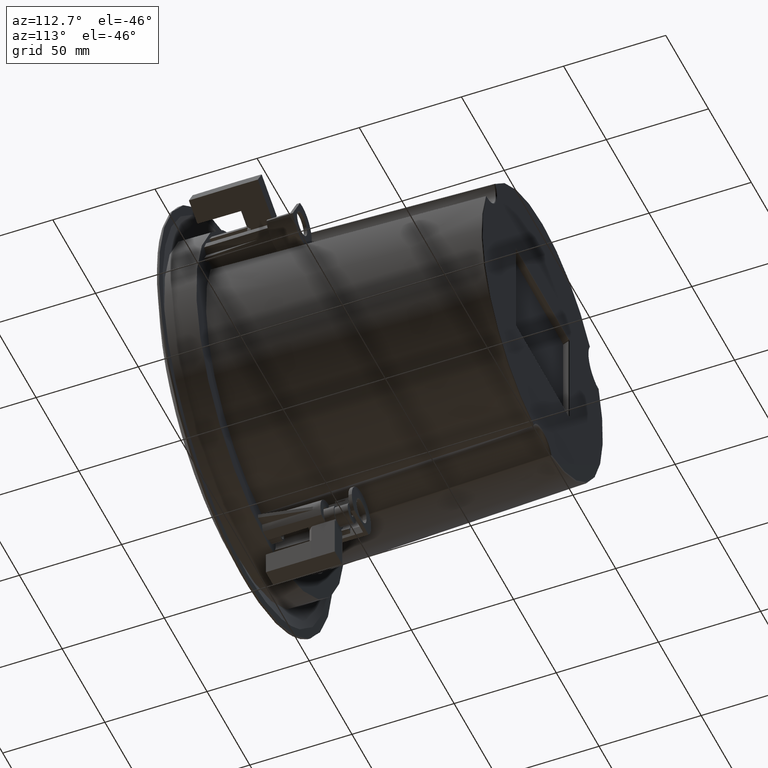
[diagram: clean part render]
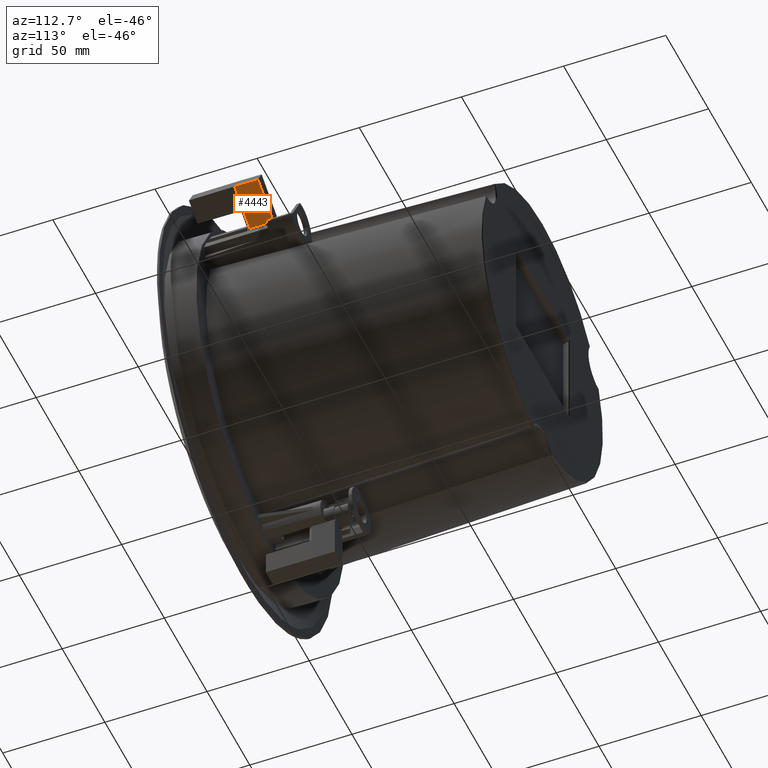
[diagram: same view with one face highlighted and labeled with its STEP entity id]
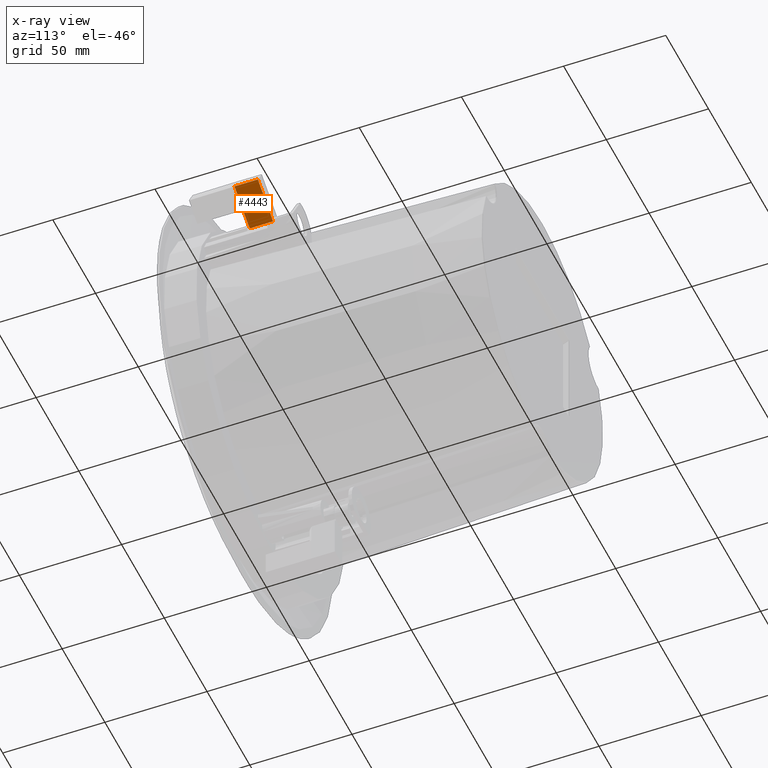
[diagram: x-ray of the same camera — body ghosted, the highlighted face saturated]
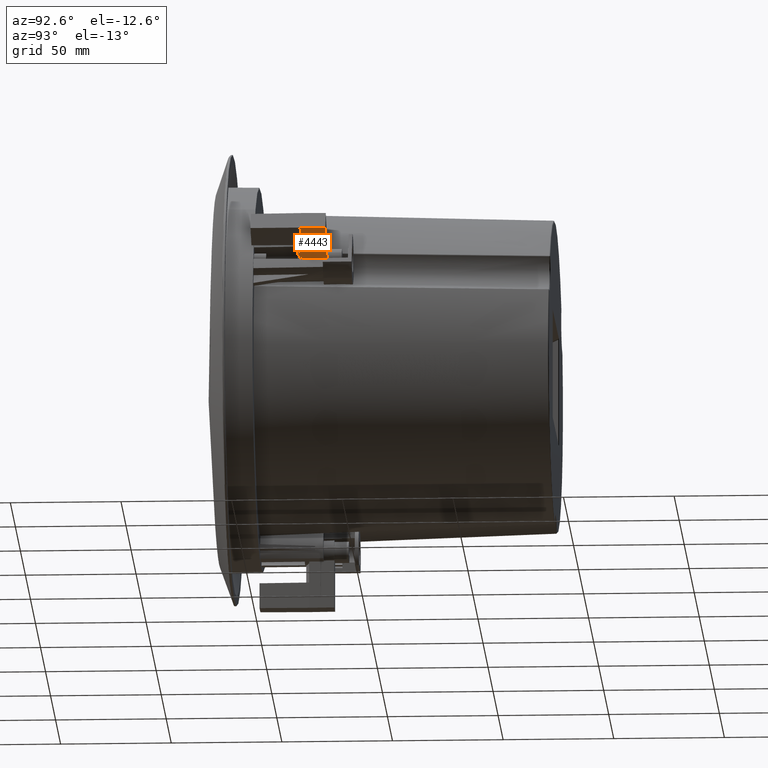
[diagram: same view with one face highlighted and labeled with its STEP entity id]
A machine part, auxiliary view. The second image highlights one B-rep face of the part: STEP entity #4443.
The next image is the same camera in x-ray: the body ghosted, the highlighted face saturated — about 0% of this face is hidden behind the body in this view.
A second angle (auxiliary view) of the same face is appended — the face is thin or edge-on in the first view.
In plain terms, the highlighted planar face has unit normal (0.5, 0.0052, -0.866).
Its self-contained STEP definition (entity closure, byte-faithful):
#261 = CARTESIAN_POINT ( 'NONE',  ( 94.33186507561924827, 35.26080833355769784, 49.39303530449536339 ) ) ;
#1206 = CARTESIAN_POINT ( 'NONE',  ( 94.41340423285350880, 23.86080833355770636, 49.37118695315927397 ) ) ;
#1476 = LINE ( 'NONE', #2825, #10540 ) ;
#1780 = LINE ( 'NONE', #261, #10417 ) ;
#1836 = EDGE_CURVE ( 'NONE', #15404, #7112, #1476, .T. ) ;
#1894 = CARTESIAN_POINT ( 'NONE',  ( 80.52715236935003418, 35.26080833355771205, 41.42288070744530870 ) ) ;
#2297 = EDGE_CURVE ( 'NONE', #11262, #7112, #13177, .T. ) ;
#2578 = VECTOR ( 'NONE', #13006, 1000.000000000000000 ) ;
#2825 = CARTESIAN_POINT ( 'NONE',  ( 76.57328091489411293, 23.86080833355771702, 39.07118695315919155 ) ) ;
#3308 = ORIENTED_EDGE ( 'NONE', *, *, #6101, .T. ) ;
#3551 = CARTESIAN_POINT ( 'NONE',  ( 94.41340423285350880, 23.86080833355770636, 49.37118695315928107 ) ) ;
#3931 = ORIENTED_EDGE ( 'NONE', *, *, #18599, .T. ) ;
#4112 = CARTESIAN_POINT ( 'NONE',  ( 94.33186507561710243, 35.26080833355768362, 49.39303530449411994 ) ) ;
#4443 = ADVANCED_FACE ( 'NONE', ( #5595 ), #8534, .T. ) ;
#4758 = LINE ( 'NONE', #13267, #2578 ) ;
#5595 = FACE_OUTER_BOUND ( 'NONE', #15515, .T. ) ;
#6008 = DIRECTION ( 'NONE',  ( 0.001916469505468282319, 0.9999725850585454712, 0.007152361565557993107 ) ) ;
#6101 = EDGE_CURVE ( 'NONE', #11262, #18312, #1780, .T. ) ;
#7112 = VERTEX_POINT ( 'NONE', #14232 ) ;
#8247 = AXIS2_PLACEMENT_3D ( 'NONE', #14335, #12542, #12912 ) ;
#8534 = PLANE ( 'NONE',  #8247 ) ;
#9327 = DIRECTION ( 'NONE',  ( -0.8660254037844363761, 5.718987256724337299E-16, -0.5000000000000041078 ) ) ;
#9497 = ORIENTED_EDGE ( 'NONE', *, *, #10422, .T. ) ;
#10340 = DIRECTION ( 'NONE',  ( -0.8660254037844363761, 5.718987256724337299E-16, -0.5000000000000041078 ) ) ;
#10417 = VECTOR ( 'NONE', #17480, 1000.000000000000114 ) ;
#10422 = EDGE_CURVE ( 'NONE', #16039, #15404, #4758, .T. ) ;
#10540 = VECTOR ( 'NONE', #6008, 1000.000000000000114 ) ;
#11262 = VERTEX_POINT ( 'NONE', #4112 ) ;
#11738 = VECTOR ( 'NONE', #10340, 1000.000000000000000 ) ;
#12278 = LINE ( 'NONE', #3551, #13259 ) ;
#12542 = DIRECTION ( 'NONE',  ( 0.4999931461237174801, 0.005235963831419518030, -0.8660135325224791458 ) ) ;
#12912 = DIRECTION ( 'NONE',  ( 0.002617981915709285002, -0.9999862922474268556, -0.004534477691306077786 ) ) ;
#13006 = DIRECTION ( 'NONE',  ( -0.8660254037844363761, 5.718987256724337299E-16, -0.5000000000000041078 ) ) ;
#13177 = LINE ( 'NONE', #1894, #11738 ) ;
#13259 = VECTOR ( 'NONE', #9327, 1000.000000000000000 ) ;
#13267 = CARTESIAN_POINT ( 'NONE',  ( 94.41340423285350880, 23.86080833355770636, 49.37118695315928107 ) ) ;
#13291 = ORIENTED_EDGE ( 'NONE', *, *, #2297, .F. ) ;
#13552 = CARTESIAN_POINT ( 'NONE',  ( 84.28090700857559625, 23.86080833355770636, 43.52118695315922992 ) ) ;
#13869 = ORIENTED_EDGE ( 'NONE', *, *, #1836, .T. ) ;
#14232 = CARTESIAN_POINT ( 'NONE',  ( 76.59512926622770124, 35.26080833355771205, 39.15272611039777928 ) ) ;
#14335 = CARTESIAN_POINT ( 'NONE',  ( 94.41340423285350880, 23.86080833355770636, 49.37118695315928107 ) ) ;
#15404 = VERTEX_POINT ( 'NONE', #17890 ) ;
#15515 = EDGE_LOOP ( 'NONE', ( #3308, #3931, #9497, #13869, #13291 ) ) ;
#16039 = VERTEX_POINT ( 'NONE', #13552 ) ;
#17480 = DIRECTION ( 'NONE',  ( 0.007152361565178060043, -0.9999725850585478026, -0.001916469505685041222 ) ) ;
#17890 = CARTESIAN_POINT ( 'NONE',  ( 76.57328091489411293, 23.86080833355771702, 39.07118695315919155 ) ) ;
#18312 = VERTEX_POINT ( 'NONE', #1206 ) ;
#18599 = EDGE_CURVE ( 'NONE', #18312, #16039, #12278, .T. ) ;